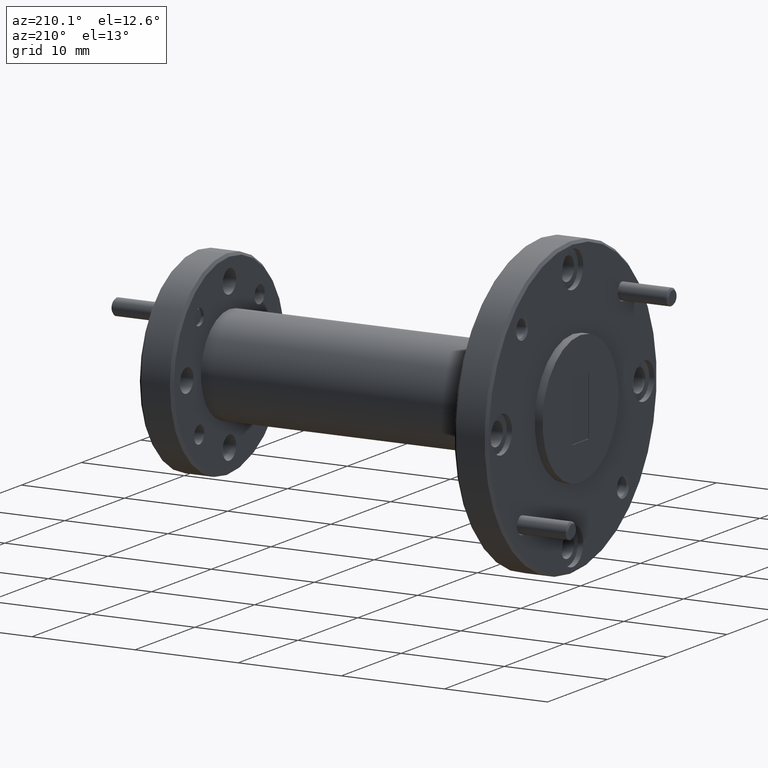
[diagram: clean part render]
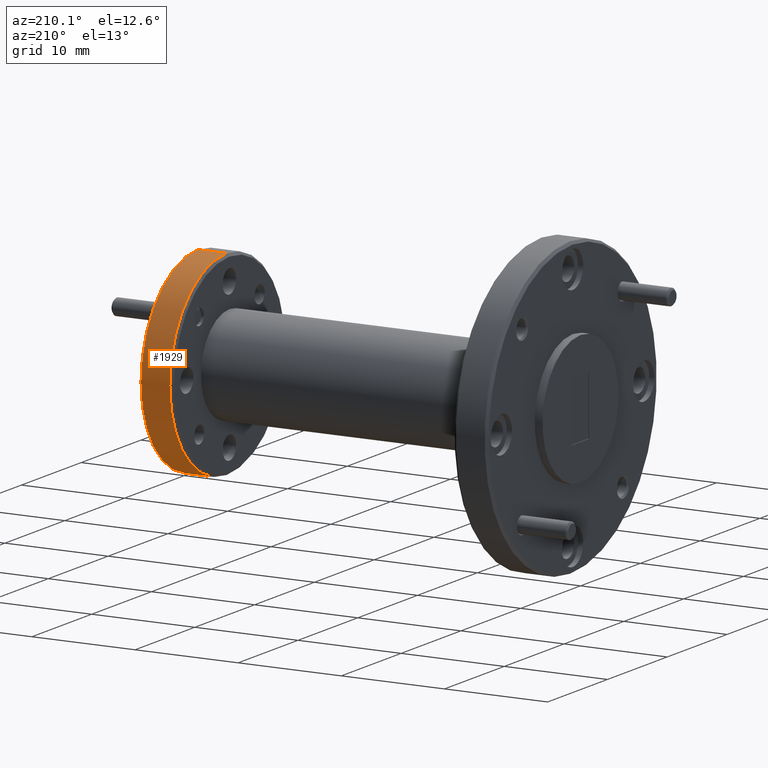
[diagram: same view with one face highlighted and labeled with its STEP entity id]
A machine part, auxiliary view. The second image highlights one B-rep face of the part: STEP entity #1929.
In plain terms, the highlighted cylindrical surface (partial cylindrical patch) has radius 9.525 mm, axis along (-1, -0, -0).
Its self-contained STEP definition (entity closure, byte-faithful):
#112 = CYLINDRICAL_SURFACE ( 'NONE', #2213, 0.3750000000000003900 ) ;
#203 = CARTESIAN_POINT ( 'NONE',  ( 1.350000000000000100, 0.0000000000000000000, 0.0000000000000000000 ) ) ;
#329 = ORIENTED_EDGE ( 'NONE', *, *, #3304, .T. ) ;
#413 = VERTEX_POINT ( 'NONE', #793 ) ;
#504 = CARTESIAN_POINT ( 'NONE',  ( 1.350000000000000100, 0.0000000000000000000, 0.3750000000000003900 ) ) ;
#523 = CARTESIAN_POINT ( 'NONE',  ( 0.0000000000000000000, 4.592425496802579100E-017, -0.3750000000000003900 ) ) ;
#654 = DIRECTION ( 'NONE',  ( -1.000000000000000000, -0.0000000000000000000, -0.0000000000000000000 ) ) ;
#753 = VECTOR ( 'NONE', #1495, 39.37007874015748100 ) ;
#789 = CIRCLE ( 'NONE', #1231, 0.3750000000000003900 ) ;
#793 = CARTESIAN_POINT ( 'NONE',  ( 1.460000000000000200, 0.0000000000000000000, 0.3750000000000003900 ) ) ;
#823 = DIRECTION ( 'NONE',  ( 1.000000000000000000, 0.0000000000000000000, 0.0000000000000000000 ) ) ;
#907 = EDGE_LOOP ( 'NONE', ( #1398, #3346, #329, #3690 ) ) ;
#1153 = VERTEX_POINT ( 'NONE', #2176 ) ;
#1231 = AXIS2_PLACEMENT_3D ( 'NONE', #203, #823, #2353 ) ;
#1398 = ORIENTED_EDGE ( 'NONE', *, *, #2152, .T. ) ;
#1439 = EDGE_CURVE ( 'NONE', #3105, #1153, #2890, .T. ) ;
#1440 = VECTOR ( 'NONE', #2984, 39.37007874015748100 ) ;
#1495 = DIRECTION ( 'NONE',  ( -1.000000000000000000, -0.0000000000000000000, -0.0000000000000000000 ) ) ;
#1929 = ADVANCED_FACE ( 'NONE', ( #3744 ), #112, .T. ) ;
#2138 = CARTESIAN_POINT ( 'NONE',  ( 1.460000000000000200, 0.0000000000000000000, 0.0000000000000000000 ) ) ;
#2152 = EDGE_CURVE ( 'NONE', #413, #3105, #3342, .T. ) ;
#2176 = CARTESIAN_POINT ( 'NONE',  ( 1.350000000000000100, 4.592425496802579100E-017, -0.3750000000000003900 ) ) ;
#2213 = AXIS2_PLACEMENT_3D ( 'NONE', #3144, #654, #3120 ) ;
#2232 = LINE ( 'NONE', #3922, #753 ) ;
#2353 = DIRECTION ( 'NONE',  ( 0.0000000000000000000, 0.0000000000000000000, -1.000000000000000000 ) ) ;
#2451 = DIRECTION ( 'NONE',  ( 0.0000000000000000000, 0.0000000000000000000, 1.000000000000000000 ) ) ;
#2613 = EDGE_CURVE ( 'NONE', #413, #3879, #2232, .T. ) ;
#2765 = DIRECTION ( 'NONE',  ( -1.000000000000000000, -0.0000000000000000000, -0.0000000000000000000 ) ) ;
#2890 = LINE ( 'NONE', #523, #1440 ) ;
#2984 = DIRECTION ( 'NONE',  ( -1.000000000000000000, -0.0000000000000000000, -0.0000000000000000000 ) ) ;
#3105 = VERTEX_POINT ( 'NONE', #3108 ) ;
#3108 = CARTESIAN_POINT ( 'NONE',  ( 1.460000000000000200, 4.592425496802579100E-017, -0.3750000000000003900 ) ) ;
#3120 = DIRECTION ( 'NONE',  ( 0.0000000000000000000, 0.0000000000000000000, 1.000000000000000000 ) ) ;
#3144 = CARTESIAN_POINT ( 'NONE',  ( 0.0000000000000000000, 0.0000000000000000000, 0.0000000000000000000 ) ) ;
#3304 = EDGE_CURVE ( 'NONE', #1153, #3879, #789, .T. ) ;
#3342 = CIRCLE ( 'NONE', #3392, 0.3750000000000003900 ) ;
#3346 = ORIENTED_EDGE ( 'NONE', *, *, #1439, .T. ) ;
#3392 = AXIS2_PLACEMENT_3D ( 'NONE', #2138, #2765, #2451 ) ;
#3690 = ORIENTED_EDGE ( 'NONE', *, *, #2613, .F. ) ;
#3744 = FACE_OUTER_BOUND ( 'NONE', #907, .T. ) ;
#3879 = VERTEX_POINT ( 'NONE', #504 ) ;
#3922 = CARTESIAN_POINT ( 'NONE',  ( 0.0000000000000000000, 0.0000000000000000000, 0.3750000000000003900 ) ) ;